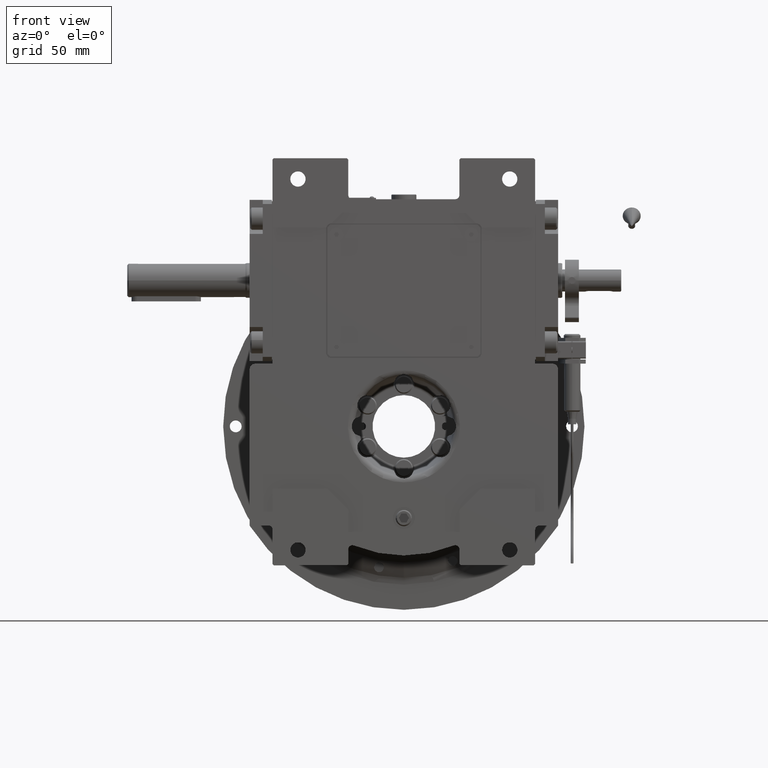
[diagram: clean part render]
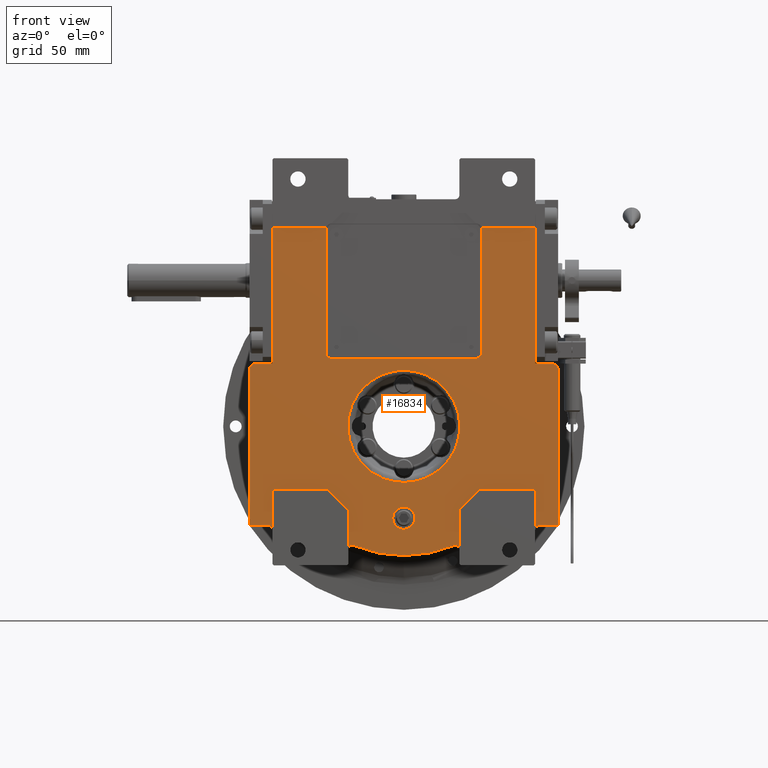
[diagram: same view with one face highlighted and labeled with its STEP entity id]
A machine part, front view. The second image highlights one B-rep face of the part: STEP entity #16834.
In plain terms, the highlighted planar face has unit normal (0, 1, 0).
Its self-contained STEP definition (entity closure, byte-faithful):
#206 = CARTESIAN_POINT ( 'NONE',  ( 94.50000000000000000, -53.50000000000000000, 143.0000000000000000 ) ) ;
#347 = VERTEX_POINT ( 'NONE', #68667 ) ;
#587 = DIRECTION ( 'NONE',  ( 0.000000000000000000, 0.000000000000000000, -1.000000000000000000 ) ) ;
#751 = VECTOR ( 'NONE', #32846, 1000.000000000000000 ) ;
#796 = ORIENTED_EDGE ( 'NONE', *, *, #72947, .F. ) ;
#1495 = CARTESIAN_POINT ( 'NONE',  ( -111.0000000000000000, -53.50000000000000000, 41.00000000000000000 ) ) ;
#2053 = ORIENTED_EDGE ( 'NONE', *, *, #55611, .F. ) ;
#2075 = CARTESIAN_POINT ( 'NONE',  ( -40.00000000000000000, -53.50000000000000000, -88.58329413608420566 ) ) ;
#2456 = CARTESIAN_POINT ( 'NONE',  ( -111.0000000000000000, -53.50000000000000000, 41.00000000000000000 ) ) ;
#2810 = EDGE_CURVE ( 'NONE', #70011, #51338, #37958, .T. ) ;
#2954 = VECTOR ( 'NONE', #15411, 1000.000000000000000 ) ;
#3187 = VERTEX_POINT ( 'NONE', #54593 ) ;
#3406 = CARTESIAN_POINT ( 'NONE',  ( 51.99999999999940314, -53.50000000000000000, 142.0000000000000000 ) ) ;
#3686 = DIRECTION ( 'NONE',  ( -1.000000000000000000, 0.000000000000000000, 0.000000000000000000 ) ) ;
#4263 = LINE ( 'NONE', #21866, #35800 ) ;
#4265 = DIRECTION ( 'NONE',  ( 0.000000000000000000, 0.000000000000000000, -1.000000000000000000 ) ) ;
#4655 = VECTOR ( 'NONE', #587, 1000.000000000000000 ) ;
#5247 = EDGE_CURVE ( 'NONE', #42436, #46842, #54655, .T. ) ;
#5947 = DIRECTION ( 'NONE',  ( 0.000000000000000000, -1.000000000000000000, 0.000000000000000000 ) ) ;
#6555 = AXIS2_PLACEMENT_3D ( 'NONE', #18847, #25301, #42180 ) ;
#7022 = CIRCLE ( 'NONE', #24176, 4.000000000000978773 ) ;
#7079 = EDGE_CURVE ( 'NONE', #56343, #17958, #72560, .T. ) ;
#7155 = VERTEX_POINT ( 'NONE', #39975 ) ;
#7327 = ORIENTED_EDGE ( 'NONE', *, *, #55008, .F. ) ;
#7371 = EDGE_CURVE ( 'NONE', #7445, #19280, #34984, .T. ) ;
#7445 = VERTEX_POINT ( 'NONE', #60221 ) ;
#8136 = VERTEX_POINT ( 'NONE', #63527 ) ;
#8142 = VERTEX_POINT ( 'NONE', #41706 ) ;
#8319 = VECTOR ( 'NONE', #13150, 1000.000000000000000 ) ;
#8396 = ORIENTED_EDGE ( 'NONE', *, *, #34858, .F. ) ;
#8527 = EDGE_CURVE ( 'NONE', #26700, #16990, #52597, .T. ) ;
#8544 = CARTESIAN_POINT ( 'NONE',  ( 56.00000000000000000, -53.50000000000000000, 53.00000000000000000 ) ) ;
#8617 = AXIS2_PLACEMENT_3D ( 'NONE', #3406, #61937, #20620 ) ;
#9006 = EDGE_LOOP ( 'NONE', ( #61177, #7327, #28204, #15265, #12919, #12644, #31732, #10382, #70431, #62284, #57572, #796, #66136, #2053, #43042, #29014, #64863, #20451, #68740, #69450, #68247, #49733, #19030, #37191, #34787, #30244, #73490, #63301, #8396, #46257, #57220, #29042 ) ) ;
#9126 = CARTESIAN_POINT ( 'NONE',  ( 52.00000000000000000, -53.50000000000000000, 53.00000000000000000 ) ) ;
#9352 = CIRCLE ( 'NONE', #37405, 3.000000000000002665 ) ;
#9522 = VERTEX_POINT ( 'NONE', #69746 ) ;
#9524 = LINE ( 'NONE', #73816, #751 ) ;
#10382 = ORIENTED_EDGE ( 'NONE', *, *, #47089, .T. ) ;
#10919 = CARTESIAN_POINT ( 'NONE',  ( 37.00000000000000000, -53.50000000000000000, -88.58329413608420566 ) ) ;
#11650 = CARTESIAN_POINT ( 'NONE',  ( -51.99999999999900524, -53.50000000000000000, 142.0000000000000000 ) ) ;
#11894 = DIRECTION ( 'NONE',  ( -0.000000000000000000, 1.000000000000000000, 0.000000000000000000 ) ) ;
#11955 = DIRECTION ( 'NONE',  ( -1.000000000000000000, 0.000000000000000000, 1.734723475976808672E-15 ) ) ;
#12017 = CARTESIAN_POINT ( 'NONE',  ( -56.00000000000000000, -53.50000000000000000, 142.0000000000000000 ) ) ;
#12431 = EDGE_CURVE ( 'NONE', #13342, #31270, #39519, .T. ) ;
#12644 = ORIENTED_EDGE ( 'NONE', *, *, #60896, .F. ) ;
#12919 = ORIENTED_EDGE ( 'NONE', *, *, #7079, .F. ) ;
#13141 = EDGE_CURVE ( 'NONE', #34386, #8142, #4263, .T. ) ;
#13150 = DIRECTION ( 'NONE',  ( 0.000000000000000000, 0.000000000000000000, 1.000000000000000000 ) ) ;
#13342 = VERTEX_POINT ( 'NONE', #14870 ) ;
#13913 = CARTESIAN_POINT ( 'NONE',  ( 94.50000000000000000, -53.50000000000000000, -45.00000000000000000 ) ) ;
#13993 = DIRECTION ( 'NONE',  ( 1.000000000000000000, 0.000000000000000000, 0.000000000000000000 ) ) ;
#14324 = CARTESIAN_POINT ( 'NONE',  ( 1.421085471520200056E-14, -53.50000000000000000, -4.263256414560599853E-14 ) ) ;
#14387 = DIRECTION ( 'NONE',  ( 1.000000000000000000, 0.000000000000000000, 0.000000000000000000 ) ) ;
#14870 = CARTESIAN_POINT ( 'NONE',  ( -97.50000000000000000, -53.50000000000000000, -71.43528539874409944 ) ) ;
#14988 = ORIENTED_EDGE ( 'NONE', *, *, #15873, .T. ) ;
#15265 = ORIENTED_EDGE ( 'NONE', *, *, #27624, .F. ) ;
#15411 = DIRECTION ( 'NONE',  ( 0.000000000000000000, 0.000000000000000000, 1.000000000000000000 ) ) ;
#15730 = CARTESIAN_POINT ( 'NONE',  ( -94.50000000000000000, -53.50000000000000000, -45.00000000000000000 ) ) ;
#15793 = LINE ( 'NONE', #8544, #2954 ) ;
#15867 = CARTESIAN_POINT ( 'NONE',  ( 40.00000000000000000, -53.50000000000000000, -60.00000000000000000 ) ) ;
#15873 = EDGE_CURVE ( 'NONE', #16518, #39278, #67689, .T. ) ;
#15936 = LINE ( 'NONE', #39651, #27209 ) ;
#16518 = VERTEX_POINT ( 'NONE', #57279 ) ;
#16786 = VECTOR ( 'NONE', #3686, 1000.000000000000000 ) ;
#16834 = ADVANCED_FACE ( 'NONE', ( #37682, #61417, #32303 ), #61046, .F. ) ;
#16990 = VERTEX_POINT ( 'NONE', #43262 ) ;
#17011 = CARTESIAN_POINT ( 'NONE',  ( 52.00000000000000000, -53.50000000000000000, 49.00000000000000000 ) ) ;
#17103 = DIRECTION ( 'NONE',  ( 0.000000000000000000, -1.000000000000000000, 0.000000000000000000 ) ) ;
#17160 = DIRECTION ( 'NONE',  ( 0.000000000000000000, -1.000000000000000000, 0.000000000000000000 ) ) ;
#17369 = LINE ( 'NONE', #15867, #57532 ) ;
#17579 = CARTESIAN_POINT ( 'NONE',  ( 56.00000000000000000, -53.50000000000000000, 142.0000000000000000 ) ) ;
#17958 = VERTEX_POINT ( 'NONE', #53441 ) ;
#18164 = DIRECTION ( 'NONE',  ( -0.9682458365518610277, 0.000000000000000000, 0.2499999999999737432 ) ) ;
#18487 = CARTESIAN_POINT ( 'NONE',  ( -52.00000000000000000, -53.50000000000000000, 53.00000000000000000 ) ) ;
#18609 = CIRCLE ( 'NONE', #56455, 3.999999999999996447 ) ;
#18758 = CARTESIAN_POINT ( 'NONE',  ( -111.0000000000000000, -53.50000000000000000, -71.43528539874409944 ) ) ;
#18847 = CARTESIAN_POINT ( 'NONE',  ( -97.50000000000000000, -53.50000000000000000, -74.43528539874409944 ) ) ;
#19009 = CARTESIAN_POINT ( 'NONE',  ( -1.264761546777279996E-10, -53.50000000000000000, 40.30959420574835406 ) ) ;
#19030 = ORIENTED_EDGE ( 'NONE', *, *, #37229, .T. ) ;
#19199 = CARTESIAN_POINT ( 'NONE',  ( -35.84375000000000000, -53.50000000000000000, -85.81506619433150718 ) ) ;
#19280 = VERTEX_POINT ( 'NONE', #33840 ) ;
#19838 = EDGE_CURVE ( 'NONE', #51338, #26700, #15793, .T. ) ;
#19864 = DIRECTION ( 'NONE',  ( 0.000000000000000000, 0.000000000000000000, -1.000000000000000000 ) ) ;
#20052 = LINE ( 'NONE', #2075, #8319 ) ;
#20451 = ORIENTED_EDGE ( 'NONE', *, *, #54477, .T. ) ;
#20620 = DIRECTION ( 'NONE',  ( 1.000000000000000000, 0.000000000000000000, 1.387778780781246883E-14 ) ) ;
#21200 = CARTESIAN_POINT ( 'NONE',  ( -94.50000000000000000, -53.50000000000000000, -45.00000000000000000 ) ) ;
#21274 = CARTESIAN_POINT ( 'NONE',  ( -8.881784197001250351E-16, -53.50000000000000000, -66.00000000000000000 ) ) ;
#21392 = LINE ( 'NONE', #57343, #56738 ) ;
#21518 = VECTOR ( 'NONE', #4265, 1000.000000000000000 ) ;
#21587 = VERTEX_POINT ( 'NONE', #28693 ) ;
#21838 = EDGE_CURVE ( 'NONE', #70781, #3187, #21392, .T. ) ;
#21866 = CARTESIAN_POINT ( 'NONE',  ( 94.50000000000000000, -53.50000000000000000, -74.43528539874399996 ) ) ;
#24176 = AXIS2_PLACEMENT_3D ( 'NONE', #11650, #58356, #18164 ) ;
#24355 = VECTOR ( 'NONE', #50575, 1000.000000000000000 ) ;
#24456 = LINE ( 'NONE', #1495, #75413 ) ;
#24537 = AXIS2_PLACEMENT_3D ( 'NONE', #9126, #72286, #19864 ) ;
#24659 = LINE ( 'NONE', #206, #4655 ) ;
#24813 = DIRECTION ( 'NONE',  ( 0.000000000000000000, 0.000000000000000000, -1.000000000000000000 ) ) ;
#25301 = DIRECTION ( 'NONE',  ( 0.000000000000000000, 1.000000000000000000, 0.000000000000000000 ) ) ;
#25548 = CARTESIAN_POINT ( 'NONE',  ( 97.50000000000000000, -53.50000000000000000, -71.43528539874399996 ) ) ;
#25597 = EDGE_CURVE ( 'NONE', #71278, #30200, #24456, .T. ) ;
#25598 = CARTESIAN_POINT ( 'NONE',  ( 55.00000000000000000, -53.50000000000000000, -45.00000000000000000 ) ) ;
#25717 = LINE ( 'NONE', #60932, #37023 ) ;
#25870 = CARTESIAN_POINT ( 'NONE',  ( 97.50000000000000000, -53.50000000000000000, -71.43528539874399996 ) ) ;
#26071 = CARTESIAN_POINT ( 'NONE',  ( 94.50000000000000000, -53.50000000000000000, -74.43528539874399996 ) ) ;
#26700 = VERTEX_POINT ( 'NONE', #17579 ) ;
#26752 = VECTOR ( 'NONE', #34223, 1000.000000000000000 ) ;
#27209 = VECTOR ( 'NONE', #34652, 1000.000000000000114 ) ;
#27213 = CARTESIAN_POINT ( 'NONE',  ( -94.50000000000000000, -53.50000000000000000, 45.00000000000000000 ) ) ;
#27267 = CIRCLE ( 'NONE', #30751, 3.000000000000003997 ) ;
#27408 = EDGE_CURVE ( 'NONE', #8136, #48022, #33097, .T. ) ;
#27476 = CARTESIAN_POINT ( 'NONE',  ( -107.0000000000000000, -53.50000000000000000, 41.00000000000000000 ) ) ;
#27507 = CARTESIAN_POINT ( 'NONE',  ( -80.61913312124997333, -53.49999999999999289, 40.30955543265923069 ) ) ;
#27518 = EDGE_CURVE ( 'NONE', #9522, #35459, #73069, .T. ) ;
#27624 = EDGE_CURVE ( 'NONE', #17958, #7445, #7022, .T. ) ;
#27795 = EDGE_CURVE ( 'NONE', #37354, #71003, #20052, .T. ) ;
#28204 = ORIENTED_EDGE ( 'NONE', *, *, #7371, .F. ) ;
#28236 = DIRECTION ( 'NONE',  ( 1.000000000000000000, 0.000000000000000000, 0.000000000000000000 ) ) ;
#28529 =( BOUNDED_CURVE ( )  B_SPLINE_CURVE ( 3, ( #55485, #38249, #74595, #68884 ),
 .UNSPECIFIED., .F., .F. ) 
 B_SPLINE_CURVE_WITH_KNOTS ( ( 4, 4 ),
 ( 4.574175343352308687, 7.715766673011676957 ),
 .UNSPECIFIED. ) 
 CURVE ( )  GEOMETRIC_REPRESENTATION_ITEM ( )  RATIONAL_B_SPLINE_CURVE ( ( 1.000000000000000000, 0.3333337746434750226, 0.3333337746434750226, 1.000000000000000000 ) ) 
 REPRESENTATION_ITEM ( '' )  );
#28566 = DIRECTION ( 'NONE',  ( 1.000000000000000000, 0.000000000000000000, 5.204170427930416550E-15 ) ) ;
#28693 = CARTESIAN_POINT ( 'NONE',  ( -107.0000000000000000, -53.50000000000000000, 45.00000000000000000 ) ) ;
#28706 = EDGE_CURVE ( 'NONE', #30200, #13342, #71194, .T. ) ;
#29014 = ORIENTED_EDGE ( 'NONE', *, *, #39618, .T. ) ;
#29042 = ORIENTED_EDGE ( 'NONE', *, *, #2810, .F. ) ;
#30200 = VERTEX_POINT ( 'NONE', #49683 ) ;
#30244 = ORIENTED_EDGE ( 'NONE', *, *, #69729, .T. ) ;
#30751 = AXIS2_PLACEMENT_3D ( 'NONE', #10919, #46138, #69500 ) ;
#31016 = DIRECTION ( 'NONE',  ( -1.000000000000000000, 0.000000000000000000, 4.625929269271481378E-15 ) ) ;
#31172 = AXIS2_PLACEMENT_3D ( 'NONE', #34312, #17103, #28566 ) ;
#31270 = VERTEX_POINT ( 'NONE', #72757 ) ;
#31732 = ORIENTED_EDGE ( 'NONE', *, *, #48185, .F. ) ;
#32303 = FACE_OUTER_BOUND ( 'NONE', #9006, .T. ) ;
#32405 = CARTESIAN_POINT ( 'NONE',  ( 35.84375000000000000, -53.50000000000000000, -85.81506619433150718 ) ) ;
#32492 = AXIS2_PLACEMENT_3D ( 'NONE', #55671, #11894, #35247 ) ;
#32846 = DIRECTION ( 'NONE',  ( 1.000000000000000000, 0.000000000000000000, 0.000000000000000000 ) ) ;
#33097 = LINE ( 'NONE', #67219, #16786 ) ;
#33680 = DIRECTION ( 'NONE',  ( 0.000000000000000000, 0.000000000000000000, 1.000000000000000000 ) ) ;
#33840 = CARTESIAN_POINT ( 'NONE',  ( -56.00000000000000000, -53.50000000000000000, 53.00000000000000000 ) ) ;
#33991 = CARTESIAN_POINT ( 'NONE',  ( 8.881784197001250351E-16, -53.50000000000000000, -66.00000000000000000 ) ) ;
#34164 = CARTESIAN_POINT ( 'NONE',  ( -107.0000000000000000, -53.50000000000000000, 45.00000000000000000 ) ) ;
#34223 = DIRECTION ( 'NONE',  ( 1.000000000000000000, 0.000000000000000000, 0.000000000000000000 ) ) ;
#34312 = CARTESIAN_POINT ( 'NONE',  ( 107.0000000000000000, -53.50000000000000000, 41.00000000000000000 ) ) ;
#34386 = VERTEX_POINT ( 'NONE', #26071 ) ;
#34542 = DIRECTION ( 'NONE',  ( 0.000000000000000000, -1.000000000000000000, 0.000000000000000000 ) ) ;
#34652 = DIRECTION ( 'NONE',  ( -0.7071067811865474617, 0.000000000000000000, 0.7071067811865474617 ) ) ;
#34787 = ORIENTED_EDGE ( 'NONE', *, *, #5247, .T. ) ;
#34858 = EDGE_CURVE ( 'NONE', #16990, #347, #9524, .T. ) ;
#34984 = LINE ( 'NONE', #12017, #67148 ) ;
#35247 = DIRECTION ( 'NONE',  ( 1.000000000000000000, 0.000000000000000000, 0.000000000000000000 ) ) ;
#35361 = DIRECTION ( 'NONE',  ( -0.7071067811865474617, 0.000000000000000000, -0.7071067811865474617 ) ) ;
#35459 = VERTEX_POINT ( 'NONE', #62628 ) ;
#35800 = VECTOR ( 'NONE', #33680, 1000.000000000000000 ) ;
#36242 = EDGE_CURVE ( 'NONE', #35459, #9522, #64431, .T. ) ;
#36340 = VERTEX_POINT ( 'NONE', #53513 ) ;
#36498 = DIRECTION ( 'NONE',  ( -1.000000000000000000, 0.000000000000000000, 0.000000000000000000 ) ) ;
#37023 = VECTOR ( 'NONE', #43334, 1000.000000000000000 ) ;
#37191 = ORIENTED_EDGE ( 'NONE', *, *, #40816, .T. ) ;
#37229 = EDGE_CURVE ( 'NONE', #34386, #68391, #9352, .T. ) ;
#37354 = VERTEX_POINT ( 'NONE', #69813 ) ;
#37405 = AXIS2_PLACEMENT_3D ( 'NONE', #44951, #57927, #45692 ) ;
#37682 = FACE_BOUND ( 'NONE', #62836, .T. ) ;
#37958 = CIRCLE ( 'NONE', #24537, 3.999999999999996447 ) ;
#38249 = CARTESIAN_POINT ( 'NONE',  ( 80.61913312099713380, -53.49999999999999289, 40.30952624498025472 ) ) ;
#39065 = LINE ( 'NONE', #15730, #21518 ) ;
#39080 = LINE ( 'NONE', #27213, #24355 ) ;
#39278 = VERTEX_POINT ( 'NONE', #19009 ) ;
#39519 = CIRCLE ( 'NONE', #6555, 3.000000000000002665 ) ;
#39610 = EDGE_CURVE ( 'NONE', #47010, #7155, #66274, .T. ) ;
#39618 = EDGE_CURVE ( 'NONE', #37354, #50322, #64651, .T. ) ;
#39651 = CARTESIAN_POINT ( 'NONE',  ( -40.00000000000000000, -53.50000000000000000, -60.00000000000000000 ) ) ;
#39975 = CARTESIAN_POINT ( 'NONE',  ( 40.00000000000000000, -53.50000000000000000, -60.00000000000000000 ) ) ;
#40393 = ORIENTED_EDGE ( 'NONE', *, *, #36242, .F. ) ;
#40816 = EDGE_CURVE ( 'NONE', #68391, #42436, #67221, .T. ) ;
#41706 = CARTESIAN_POINT ( 'NONE',  ( 94.50000000000000000, -53.50000000000000000, -45.00000000000000000 ) ) ;
#42180 = DIRECTION ( 'NONE',  ( 0.000000000000000000, 0.000000000000000000, 1.000000000000000000 ) ) ;
#42436 = VERTEX_POINT ( 'NONE', #49646 ) ;
#43042 = ORIENTED_EDGE ( 'NONE', *, *, #27795, .F. ) ;
#43262 = CARTESIAN_POINT ( 'NONE',  ( 55.87298334620739837, -53.50000000000000000, 143.0000000000000000 ) ) ;
#43334 = DIRECTION ( 'NONE',  ( 1.000000000000000000, 0.000000000000000000, 0.000000000000000000 ) ) ;
#43363 = VERTEX_POINT ( 'NONE', #32405 ) ;
#44035 = EDGE_CURVE ( 'NONE', #7155, #36340, #17369, .T. ) ;
#44951 = CARTESIAN_POINT ( 'NONE',  ( 97.50000000000000000, -53.50000000000000000, -74.43528539874399996 ) ) ;
#45092 = VECTOR ( 'NONE', #35361, 1000.000000000000114 ) ;
#45692 = DIRECTION ( 'NONE',  ( -1.000000000000000000, 0.000000000000000000, 0.000000000000000000 ) ) ;
#45963 = AXIS2_PLACEMENT_3D ( 'NONE', #33991, #17160, #63849 ) ;
#46138 = DIRECTION ( 'NONE',  ( 0.000000000000000000, 1.000000000000000000, 0.000000000000000000 ) ) ;
#46257 = ORIENTED_EDGE ( 'NONE', *, *, #8527, .F. ) ;
#46442 = VECTOR ( 'NONE', #66164, 1000.000000000000000 ) ;
#46547 = EDGE_CURVE ( 'NONE', #347, #70781, #24659, .T. ) ;
#46842 = VERTEX_POINT ( 'NONE', #47088 ) ;
#46872 = CARTESIAN_POINT ( 'NONE',  ( -37.00000000000000000, -53.50000000000000000, -88.58329413608420566 ) ) ;
#47010 = VERTEX_POINT ( 'NONE', #25598 ) ;
#47088 = CARTESIAN_POINT ( 'NONE',  ( 111.0000000000000000, -53.50000000000000000, 41.00000000000000000 ) ) ;
#47089 = EDGE_CURVE ( 'NONE', #21587, #71278, #47483, .T. ) ;
#47483 = CIRCLE ( 'NONE', #52378, 3.999999999999996447 ) ;
#48022 = VERTEX_POINT ( 'NONE', #21200 ) ;
#48185 = EDGE_CURVE ( 'NONE', #21587, #50187, #56773, .T. ) ;
#48647 = CARTESIAN_POINT ( 'NONE',  ( 55.00000000000000000, -53.50000000000000000, -45.00000000000000000 ) ) ;
#48841 = CARTESIAN_POINT ( 'NONE',  ( -40.00000000000000000, -53.50000000000000000, -60.00000000000000000 ) ) ;
#49364 = CARTESIAN_POINT ( 'NONE',  ( -1.264761546777279996E-10, -53.50000000000000000, 40.30959420574835406 ) ) ;
#49547 = DIRECTION ( 'NONE',  ( -0.3854166666666672403, 0.000000000000000000, -0.9227426472508764022 ) ) ;
#49646 = CARTESIAN_POINT ( 'NONE',  ( 111.0000000000000000, -53.50000000000000000, -71.43528539874399996 ) ) ;
#49683 = CARTESIAN_POINT ( 'NONE',  ( -111.0000000000000000, -53.50000000000000000, -71.43528539874409944 ) ) ;
#49733 = ORIENTED_EDGE ( 'NONE', *, *, #13141, .F. ) ;
#50187 = VERTEX_POINT ( 'NONE', #66273 ) ;
#50322 = VERTEX_POINT ( 'NONE', #19199 ) ;
#50575 = DIRECTION ( 'NONE',  ( 0.000000000000000000, 0.000000000000000000, 1.000000000000000000 ) ) ;
#51338 = VERTEX_POINT ( 'NONE', #61835 ) ;
#52165 = VECTOR ( 'NONE', #36498, 1000.000000000000000 ) ;
#52311 = CIRCLE ( 'NONE', #55970, 92.99999999999995737 ) ;
#52378 = AXIS2_PLACEMENT_3D ( 'NONE', #27476, #73808, #74175 ) ;
#52597 = CIRCLE ( 'NONE', #8617, 4.000000000000572875 ) ;
#53441 = CARTESIAN_POINT ( 'NONE',  ( -55.87298334620739837, -53.50000000000000000, 143.0000000000000000 ) ) ;
#53513 = CARTESIAN_POINT ( 'NONE',  ( 40.00000000000000000, -53.50000000000000000, -88.58329413608420566 ) ) ;
#54477 = EDGE_CURVE ( 'NONE', #43363, #36340, #27267, .T. ) ;
#54593 = CARTESIAN_POINT ( 'NONE',  ( 107.0000000000000000, -53.50000000000000000, 45.00000000000000000 ) ) ;
#54655 = LINE ( 'NONE', #55032, #46442 ) ;
#54991 = VERTEX_POINT ( 'NONE', #70545 ) ;
#55008 = EDGE_CURVE ( 'NONE', #19280, #54991, #18609, .T. ) ;
#55032 = CARTESIAN_POINT ( 'NONE',  ( 111.0000000000000000, -53.50000000000000000, -71.43528539874399996 ) ) ;
#55104 = CARTESIAN_POINT ( 'NONE',  ( -80.61913312099703433, -53.49999999999999289, -40.30952624498007708 ) ) ;
#55141 = DIRECTION ( 'NONE',  ( 0.000000000000000000, 1.000000000000000000, 0.000000000000000000 ) ) ;
#55485 = CARTESIAN_POINT ( 'NONE',  ( -1.264761546777279996E-10, -53.50000000000000000, 40.30959420574835406 ) ) ;
#55611 = EDGE_CURVE ( 'NONE', #71003, #8136, #15936, .T. ) ;
#55671 = CARTESIAN_POINT ( 'NONE',  ( 0.000000000000000000, -53.50000000000000000, 0.000000000000000000 ) ) ;
#55970 = AXIS2_PLACEMENT_3D ( 'NONE', #14324, #66797, #49547 ) ;
#56303 = EDGE_CURVE ( 'NONE', #54991, #70011, #25717, .T. ) ;
#56343 = VERTEX_POINT ( 'NONE', #60553 ) ;
#56455 = AXIS2_PLACEMENT_3D ( 'NONE', #18487, #34542, #11955 ) ;
#56738 = VECTOR ( 'NONE', #28236, 1000.000000000000000 ) ;
#56773 = LINE ( 'NONE', #34164, #58391 ) ;
#57162 = AXIS2_PLACEMENT_3D ( 'NONE', #21274, #5947, #64866 ) ;
#57220 = ORIENTED_EDGE ( 'NONE', *, *, #19838, .F. ) ;
#57279 = CARTESIAN_POINT ( 'NONE',  ( 1.264666971694413862E-10, -53.50000000000000000, -40.30959420574829721 ) ) ;
#57343 = CARTESIAN_POINT ( 'NONE',  ( 94.50000000000000000, -53.50000000000000000, 45.00000000000000000 ) ) ;
#57532 = VECTOR ( 'NONE', #74791, 1000.000000000000000 ) ;
#57572 = ORIENTED_EDGE ( 'NONE', *, *, #12431, .T. ) ;
#57927 = DIRECTION ( 'NONE',  ( 0.000000000000000000, 1.000000000000000000, 0.000000000000000000 ) ) ;
#58063 = CARTESIAN_POINT ( 'NONE',  ( 94.50000000000000000, -53.50000000000000000, 45.00000000000000000 ) ) ;
#58356 = DIRECTION ( 'NONE',  ( 0.000000000000000000, -1.000000000000000000, 0.000000000000000000 ) ) ;
#58391 = VECTOR ( 'NONE', #75505, 1000.000000000000000 ) ;
#58930 = EDGE_CURVE ( 'NONE', #8142, #47010, #65638, .T. ) ;
#60221 = CARTESIAN_POINT ( 'NONE',  ( -56.00000000000000000, -53.50000000000000000, 142.0000000000000000 ) ) ;
#60553 = CARTESIAN_POINT ( 'NONE',  ( -94.50000000000000000, -53.50000000000000000, 143.0000000000000000 ) ) ;
#60896 = EDGE_CURVE ( 'NONE', #50187, #56343, #39080, .T. ) ;
#60932 = CARTESIAN_POINT ( 'NONE',  ( -52.00000000000000000, -53.50000000000000000, 49.00000000000000000 ) ) ;
#61046 = PLANE ( 'NONE',  #32492 ) ;
#61177 = ORIENTED_EDGE ( 'NONE', *, *, #56303, .F. ) ;
#61417 = FACE_BOUND ( 'NONE', #64132, .T. ) ;
#61835 = CARTESIAN_POINT ( 'NONE',  ( 56.00000000000000000, -53.50000000000000000, 53.00000000000000000 ) ) ;
#61937 = DIRECTION ( 'NONE',  ( 0.000000000000000000, -1.000000000000000000, 0.000000000000000000 ) ) ;
#62188 = AXIS2_PLACEMENT_3D ( 'NONE', #46872, #55141, #31016 ) ;
#62284 = ORIENTED_EDGE ( 'NONE', *, *, #28706, .T. ) ;
#62628 = CARTESIAN_POINT ( 'NONE',  ( 8.000000000000000000, -53.50000000000000000, -66.00000000000000000 ) ) ;
#62836 = EDGE_LOOP ( 'NONE', ( #14988, #72151 ) ) ;
#63301 = ORIENTED_EDGE ( 'NONE', *, *, #46547, .F. ) ;
#63527 = CARTESIAN_POINT ( 'NONE',  ( -55.00000000000000000, -53.50000000000000000, -45.00000000000000000 ) ) ;
#63704 = CARTESIAN_POINT ( 'NONE',  ( -94.50000000000000000, -53.50000000000000000, 143.0000000000000000 ) ) ;
#63849 = DIRECTION ( 'NONE',  ( 1.000000000000000000, 0.000000000000000000, 0.000000000000000000 ) ) ;
#64132 = EDGE_LOOP ( 'NONE', ( #40393, #73131 ) ) ;
#64211 = CIRCLE ( 'NONE', #31172, 4.000000000000003553 ) ;
#64431 = CIRCLE ( 'NONE', #45963, 8.000000000000000000 ) ;
#64651 = CIRCLE ( 'NONE', #62188, 3.000000000000002665 ) ;
#64858 = DIRECTION ( 'NONE',  ( 0.000000000000000000, 0.000000000000000000, -1.000000000000000000 ) ) ;
#64863 = ORIENTED_EDGE ( 'NONE', *, *, #74717, .T. ) ;
#64866 = DIRECTION ( 'NONE',  ( -1.000000000000000000, 0.000000000000000000, 0.000000000000000000 ) ) ;
#65638 = LINE ( 'NONE', #13913, #52165 ) ;
#66136 = ORIENTED_EDGE ( 'NONE', *, *, #27408, .F. ) ;
#66164 = DIRECTION ( 'NONE',  ( 6.319570704518680589E-16, 0.000000000000000000, 1.000000000000000000 ) ) ;
#66273 = CARTESIAN_POINT ( 'NONE',  ( -94.50000000000000000, -53.50000000000000000, 45.00000000000000000 ) ) ;
#66274 = LINE ( 'NONE', #48647, #45092 ) ;
#66797 = DIRECTION ( 'NONE',  ( 0.000000000000000000, -1.000000000000000000, 0.000000000000000000 ) ) ;
#67148 = VECTOR ( 'NONE', #64858, 1000.000000000000000 ) ;
#67219 = CARTESIAN_POINT ( 'NONE',  ( -55.00000000000000000, -53.50000000000000000, -45.00000000000000000 ) ) ;
#67221 = LINE ( 'NONE', #25870, #74521 ) ;
#67689 =( BOUNDED_CURVE ( )  B_SPLINE_CURVE ( 3, ( #68132, #55104, #27507, #49364 ),
 .UNSPECIFIED., .F., .F. ) 
 B_SPLINE_CURVE_WITH_KNOTS ( ( 4, 4 ),
 ( 1.432582689913126872, 4.574174019572492256 ),
 .UNSPECIFIED. ) 
 CURVE ( )  GEOMETRIC_REPRESENTATION_ITEM ( )  RATIONAL_B_SPLINE_CURVE ( ( 1.000000000000000000, 0.3333337746434759108, 0.3333337746434759108, 1.000000000000000000 ) ) 
 REPRESENTATION_ITEM ( '' )  );
#67918 = EDGE_CURVE ( 'NONE', #39278, #16518, #28529, .T. ) ;
#68132 = CARTESIAN_POINT ( 'NONE',  ( 1.264666971694413862E-10, -53.50000000000000000, -40.30959420574829721 ) ) ;
#68247 = ORIENTED_EDGE ( 'NONE', *, *, #58930, .F. ) ;
#68391 = VERTEX_POINT ( 'NONE', #25548 ) ;
#68667 = CARTESIAN_POINT ( 'NONE',  ( 94.50000000000000000, -53.50000000000000000, 143.0000000000000000 ) ) ;
#68740 = ORIENTED_EDGE ( 'NONE', *, *, #44035, .F. ) ;
#68884 = CARTESIAN_POINT ( 'NONE',  ( 1.264666971694413862E-10, -53.50000000000000000, -40.30959420574829721 ) ) ;
#69450 = ORIENTED_EDGE ( 'NONE', *, *, #39610, .F. ) ;
#69500 = DIRECTION ( 'NONE',  ( -0.3854166666666676289, 0.000000000000000000, 0.9227426472508761801 ) ) ;
#69524 = VECTOR ( 'NONE', #14387, 1000.000000000000000 ) ;
#69729 = EDGE_CURVE ( 'NONE', #46842, #3187, #64211, .T. ) ;
#69746 = CARTESIAN_POINT ( 'NONE',  ( -8.000000000000000000, -53.50000000000000000, -66.00000000000000000 ) ) ;
#69813 = CARTESIAN_POINT ( 'NONE',  ( -40.00000000000000000, -53.50000000000000000, -88.58329413608420566 ) ) ;
#70011 = VERTEX_POINT ( 'NONE', #17011 ) ;
#70431 = ORIENTED_EDGE ( 'NONE', *, *, #25597, .T. ) ;
#70545 = CARTESIAN_POINT ( 'NONE',  ( -52.00000000000000000, -53.50000000000000000, 49.00000000000000000 ) ) ;
#70781 = VERTEX_POINT ( 'NONE', #58063 ) ;
#71003 = VERTEX_POINT ( 'NONE', #48841 ) ;
#71194 = LINE ( 'NONE', #18758, #69524 ) ;
#71278 = VERTEX_POINT ( 'NONE', #2456 ) ;
#72151 = ORIENTED_EDGE ( 'NONE', *, *, #67918, .T. ) ;
#72286 = DIRECTION ( 'NONE',  ( 0.000000000000000000, -1.000000000000000000, 0.000000000000000000 ) ) ;
#72560 = LINE ( 'NONE', #63704, #26752 ) ;
#72757 = CARTESIAN_POINT ( 'NONE',  ( -94.50000000000000000, -53.50000000000000000, -74.43528539874409944 ) ) ;
#72947 = EDGE_CURVE ( 'NONE', #48022, #31270, #39065, .T. ) ;
#73069 = CIRCLE ( 'NONE', #57162, 8.000000000000000000 ) ;
#73131 = ORIENTED_EDGE ( 'NONE', *, *, #27518, .F. ) ;
#73490 = ORIENTED_EDGE ( 'NONE', *, *, #21838, .F. ) ;
#73808 = DIRECTION ( 'NONE',  ( 0.000000000000000000, -1.000000000000000000, 0.000000000000000000 ) ) ;
#73816 = CARTESIAN_POINT ( 'NONE',  ( 55.87298334620739837, -53.50000000000000000, 143.0000000000000000 ) ) ;
#74175 = DIRECTION ( 'NONE',  ( -3.469446951953617344E-15, 0.000000000000000000, 1.000000000000000000 ) ) ;
#74521 = VECTOR ( 'NONE', #13993, 1000.000000000000000 ) ;
#74595 = CARTESIAN_POINT ( 'NONE',  ( 80.61913312125007280, -53.49999999999999289, -40.30955543265933727 ) ) ;
#74717 = EDGE_CURVE ( 'NONE', #50322, #43363, #52311, .T. ) ;
#74791 = DIRECTION ( 'NONE',  ( 0.000000000000000000, 0.000000000000000000, -1.000000000000000000 ) ) ;
#75413 = VECTOR ( 'NONE', #24813, 1000.000000000000000 ) ;
#75505 = DIRECTION ( 'NONE',  ( 1.000000000000000000, 0.000000000000000000, 0.000000000000000000 ) ) ;